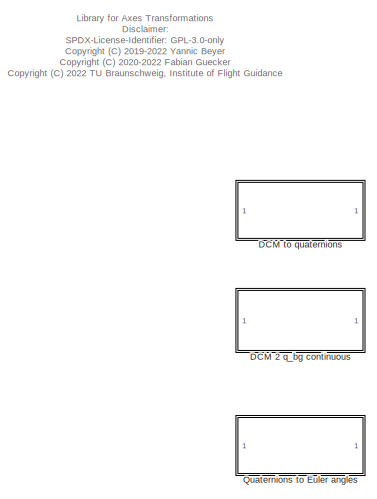
[diagram: root canvas - part 1/2, full width, top band]
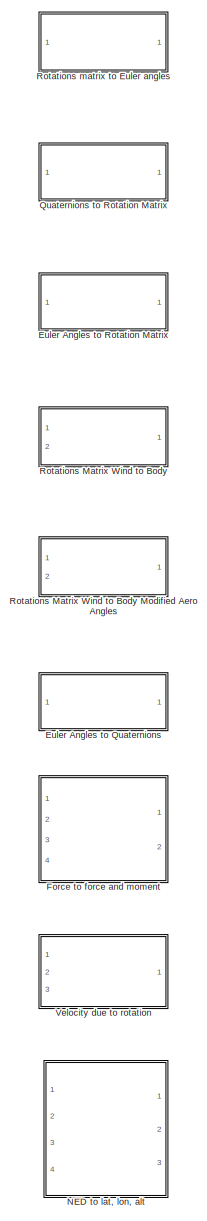
[diagram: root canvas - part 2/2, middle right region]
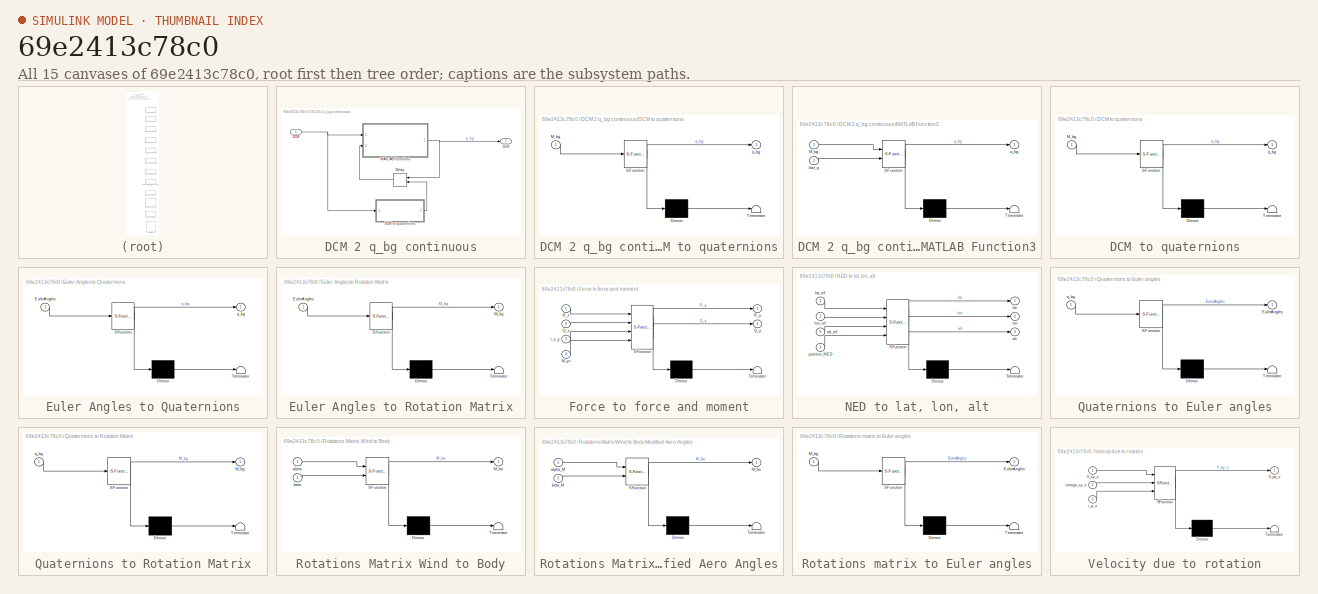
[diagram: thumbnail index - all 15 canvases of the model, root first then tree order]
MODEL slx_69e2413c78c0
KIND library
CONFIG AbsTol = auto
CONFIG EnableMultiTasking = off
CONFIG FixedStep = auto
CONFIG MaxStep = auto
CONFIG MinStep = auto
CONFIG RelTol = 1e-3
CONFIG SampleTimeConstraint = Unconstrained
CONFIG Solver = VariableStepAuto
CONFIG SolverName = VariableStepAuto
CONFIG StartTime = 0.0
CONFIG StopTime = 10.0
BLOCK [SubSystem] DCM 2 q_bg continuous
  Ports = [1, 1]
  RequestExecContextInheritance = off
BLOCK [Inport] DCM 2 q_bg continuous/DCM
  IconDisplay = Port number
BLOCK [SubSystem] DCM 2 q_bg continuous/DCM to quaternions
  ErrorFcn = Stateflow.Translate.translate
  PermitHierarchicalResolution = ExplicitOnly
  Ports = [1, 1]
  RequestExecContextInheritance = off
  SFBlockType = MATLAB Function
  TreatAsAtomicUnit = on
BLOCK [Demux] DCM 2 q_bg continuous/DCM to quaternions/ Demux 
  Outputs = 1
  Ports = [1, 1]
BLOCK [S-Function] DCM 2 q_bg continuous/DCM to quaternions/ SFunction 
  EnableBusSupport = off
  FunctionName = sf_sfun
  PortCounts = [1 2]
  Ports = [1, 2]
  SFcnIsStateOwnerBlock = off
  SFunctionDeploymentMode = off
  Tag = Stateflow S-Function axes_transformation_lib 13
BLOCK [Terminator] DCM 2 q_bg continuous/DCM to quaternions/ Terminator 
BLOCK [Inport] DCM 2 q_bg continuous/DCM to quaternions/M_bg
  IconDisplay = Port number
BLOCK [Outport] DCM 2 q_bg continuous/DCM to quaternions/q_bg
  IconDisplay = Port number
BLOCK [Delay] DCM 2 q_bg continuous/Delay
  DelayLength = 1
  InitialConditionSource = Input port
  InputPortMap = u0,p4
  Ports = [2, 1]
BLOCK [SubSystem] DCM 2 q_bg continuous/MATLAB Function3
  ErrorFcn = Stateflow.Translate.translate
  PermitHierarchicalResolution = ExplicitOnly
  Ports = [2, 1]
  RequestExecContextInheritance = off
  SFBlockType = MATLAB Function
  TreatAsAtomicUnit = on
BLOCK [Demux] DCM 2 q_bg continuous/MATLAB Function3/ Demux 
  Outputs = 1
  Ports = [1, 1]
BLOCK [S-Function] DCM 2 q_bg continuous/MATLAB Function3/ SFunction 
  EnableBusSupport = off
  FunctionName = sf_sfun
  PortCounts = [2 2]
  Ports = [2, 2]
  SFcnIsStateOwnerBlock = off
  SFunctionDeploymentMode = off
  Tag = Stateflow S-Function axes_transformation_lib 10
BLOCK [Terminator] DCM 2 q_bg continuous/MATLAB Function3/ Terminator 
BLOCK [Inport] DCM 2 q_bg continuous/MATLAB Function3/M_bg
  IconDisplay = Port number
BLOCK [Inport] DCM 2 q_bg continuous/MATLAB Function3/last_q
  IconDisplay = Port number
  Port = 2
BLOCK [Outport] DCM 2 q_bg continuous/MATLAB Function3/q_bg
  IconDisplay = Port number
BLOCK [Outport] DCM 2 q_bg continuous/quat
  IconDisplay = Port number
BLOCK [SubSystem] DCM to quaternions
  ErrorFcn = Stateflow.Translate.translate
  PermitHierarchicalResolution = ExplicitOnly
  Ports = [1, 1]
  RequestExecContextInheritance = off
  SFBlockType = MATLAB Function
  TreatAsAtomicUnit = on
BLOCK [Demux] DCM to quaternions/ Demux 
  Outputs = 1
  Ports = [1, 1]
BLOCK [S-Function] DCM to quaternions/ SFunction 
  EnableBusSupport = off
  FunctionName = sf_sfun
  PortCounts = [1 2]
  Ports = [1, 2]
  SFcnIsStateOwnerBlock = off
  SFunctionDeploymentMode = off
  Tag = Stateflow S-Function axes_transformation_lib 11
BLOCK [Terminator] DCM to quaternions/ Terminator 
BLOCK [Inport] DCM to quaternions/M_bg
  IconDisplay = Port number
BLOCK [Outport] DCM to quaternions/q_bg
  IconDisplay = Port number
BLOCK [SubSystem] Euler Angles to Quaternions
  ErrorFcn = Stateflow.Translate.translate
  PermitHierarchicalResolution = ExplicitOnly
  Ports = [1, 1]
  RequestExecContextInheritance = off
  SFBlockType = MATLAB Function
  TreatAsAtomicUnit = on
BLOCK [Demux] Euler Angles to Quaternions/ Demux 
  Outputs = 1
  Ports = [1, 1]
BLOCK [S-Function] Euler Angles to Quaternions/ SFunction 
  EnableBusSupport = off
  FunctionName = sf_sfun
  PortCounts = [1 2]
  Ports = [1, 2]
  SFcnIsStateOwnerBlock = off
  SFunctionDeploymentMode = off
  Tag = Stateflow S-Function axes_transformation_lib 7
BLOCK [Terminator] Euler Angles to Quaternions/ Terminator 
BLOCK [Inport] Euler Angles to Quaternions/EulerAngles
  IconDisplay = Port number
BLOCK [Outport] Euler Angles to Quaternions/q_bg
  IconDisplay = Port number
BLOCK [SubSystem] Euler Angles to Rotation Matrix
  ErrorFcn = Stateflow.Translate.translate
  PermitHierarchicalResolution = ExplicitOnly
  Ports = [1, 1]
  RequestExecContextInheritance = off
  SFBlockType = MATLAB Function
  TreatAsAtomicUnit = on
BLOCK [Demux] Euler Angles to Rotation Matrix/ Demux 
  Outputs = 1
  Ports = [1, 1]
BLOCK [S-Function] Euler Angles to Rotation Matrix/ SFunction 
  EnableBusSupport = off
  FunctionName = sf_sfun
  PortCounts = [1 2]
  Ports = [1, 2]
  SFcnIsStateOwnerBlock = off
  SFunctionDeploymentMode = off
  Tag = Stateflow S-Function axes_transformation_lib 4
BLOCK [Terminator] Euler Angles to Rotation Matrix/ Terminator 
BLOCK [Inport] Euler Angles to Rotation Matrix/EulerAngles
  IconDisplay = Port number
BLOCK [Outport] Euler Angles to Rotation Matrix/M_bg
  IconDisplay = Port number
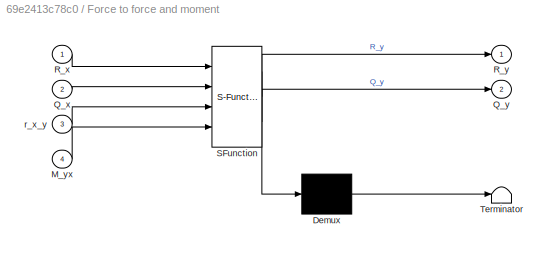
BLOCK [SubSystem] Force to force and moment
  ErrorFcn = Stateflow.Translate.translate
  PermitHierarchicalResolution = ExplicitOnly
  Ports = [4, 2]
  RequestExecContextInheritance = off
  SFBlockType = MATLAB Function
  TreatAsAtomicUnit = on
BLOCK [Demux] Force to force and moment/ Demux 
  Outputs = 1
  Ports = [1, 1]
BLOCK [S-Function] Force to force and moment/ SFunction 
  EnableBusSupport = off
  FunctionName = sf_sfun
  PortCounts = [4 3]
  Ports = [4, 3]
  SFcnIsStateOwnerBlock = off
  SFunctionDeploymentMode = off
  Tag = Stateflow S-Function axes_transformation_lib 8
BLOCK [Terminator] Force to force and moment/ Terminator 
BLOCK [Inport] Force to force and moment/M_yx
  IconDisplay = Port number
  Port = 4
BLOCK [Inport] Force to force and moment/Q_x
  IconDisplay = Port number
  Port = 2
BLOCK [Outport] Force to force and moment/Q_y
  IconDisplay = Port number
  Port = 2
BLOCK [Inport] Force to force and moment/R_x
  IconDisplay = Port number
BLOCK [Outport] Force to force and moment/R_y
  IconDisplay = Port number
BLOCK [Inport] Force to force and moment/r_x_y
  IconDisplay = Port number
  Port = 3
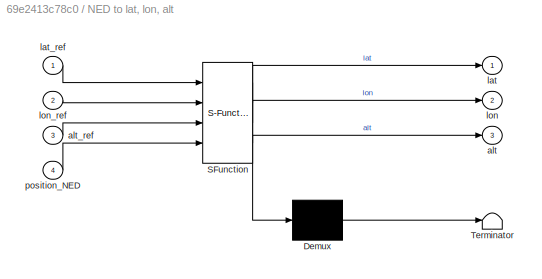
BLOCK [SubSystem] NED to lat, lon, alt
  ErrorFcn = Stateflow.Translate.translate
  PermitHierarchicalResolution = ExplicitOnly
  Ports = [4, 3]
  RequestExecContextInheritance = off
  SFBlockType = MATLAB Function
  TreatAsAtomicUnit = on
BLOCK [Demux] NED to lat, lon, alt/ Demux 
  Outputs = 1
  Ports = [1, 1]
BLOCK [S-Function] NED to lat, lon, alt/ SFunction 
  EnableBusSupport = off
  FunctionName = sf_sfun
  PortCounts = [4 4]
  Ports = [4, 4]
  SFcnIsStateOwnerBlock = off
  SFunctionDeploymentMode = off
  Tag = Stateflow S-Function axes_transformation_lib 12
BLOCK [Terminator] NED to lat, lon, alt/ Terminator 
BLOCK [Outport] NED to lat, lon, alt/alt
  IconDisplay = Port number
  Port = 3
BLOCK [Inport] NED to lat, lon, alt/alt_ref
  IconDisplay = Port number
  Port = 3
BLOCK [Outport] NED to lat, lon, alt/lat
  IconDisplay = Port number
BLOCK [Inport] NED to lat, lon, alt/lat_ref
  IconDisplay = Port number
BLOCK [Outport] NED to lat, lon, alt/lon
  IconDisplay = Port number
  Port = 2
BLOCK [Inport] NED to lat, lon, alt/lon_ref
  IconDisplay = Port number
  Port = 2
BLOCK [Inport] NED to lat, lon, alt/position_NED
  IconDisplay = Port number
  Port = 4
BLOCK [SubSystem] Quaternions to Euler angles
  ErrorFcn = Stateflow.Translate.translate
  PermitHierarchicalResolution = ExplicitOnly
  Ports = [1, 1]
  RequestExecContextInheritance = off
  SFBlockType = MATLAB Function
  TreatAsAtomicUnit = on
BLOCK [Demux] Quaternions to Euler angles/ Demux 
  Outputs = 1
  Ports = [1, 1]
BLOCK [S-Function] Quaternions to Euler angles/ SFunction 
  EnableBusSupport = off
  FunctionName = sf_sfun
  PortCounts = [1 2]
  Ports = [1, 2]
  SFcnIsStateOwnerBlock = off
  SFunctionDeploymentMode = off
  Tag = Stateflow S-Function axes_transformation_lib 2
BLOCK [Terminator] Quaternions to Euler angles/ Terminator 
BLOCK [Outport] Quaternions to Euler angles/EulerAngles
  IconDisplay = Port number
BLOCK [Inport] Quaternions to Euler angles/q_bg
  IconDisplay = Port number
BLOCK [SubSystem] Quaternions to Rotation Matrix
  ErrorFcn = Stateflow.Translate.translate
  PermitHierarchicalResolution = ExplicitOnly
  Ports = [1, 1]
  RequestExecContextInheritance = off
  SFBlockType = MATLAB Function
  TreatAsAtomicUnit = on
BLOCK [Demux] Quaternions to Rotation Matrix/ Demux 
  Outputs = 1
  Ports = [1, 1]
BLOCK [S-Function] Quaternions to Rotation Matrix/ SFunction 
  EnableBusSupport = off
  FunctionName = sf_sfun
  PortCounts = [1 2]
  Ports = [1, 2]
  SFcnIsStateOwnerBlock = off
  SFunctionDeploymentMode = off
  Tag = Stateflow S-Function axes_transformation_lib 3
BLOCK [Terminator] Quaternions to Rotation Matrix/ Terminator 
BLOCK [Outport] Quaternions to Rotation Matrix/M_bg
  IconDisplay = Port number
BLOCK [Inport] Quaternions to Rotation Matrix/q_bg
  IconDisplay = Port number
BLOCK [SubSystem] Rotations Matrix Wind to Body
  ErrorFcn = Stateflow.Translate.translate
  PermitHierarchicalResolution = ExplicitOnly
  Ports = [2, 1]
  RequestExecContextInheritance = off
  SFBlockType = MATLAB Function
  TreatAsAtomicUnit = on
BLOCK [SubSystem] Rotations Matrix Wind to Body Modified Aero Angles
  ErrorFcn = Stateflow.Translate.translate
  PermitHierarchicalResolution = ExplicitOnly
  Ports = [2, 1]
  RequestExecContextInheritance = off
  SFBlockType = MATLAB Function
  TreatAsAtomicUnit = on
BLOCK [Demux] Rotations Matrix Wind to Body Modified Aero Angles/ Demux 
  Outputs = 1
  Ports = [1, 1]
BLOCK [S-Function] Rotations Matrix Wind to Body Modified Aero Angles/ SFunction 
  EnableBusSupport = off
  FunctionName = sf_sfun
  PortCounts = [2 2]
  Ports = [2, 2]
  SFcnIsStateOwnerBlock = off
  SFunctionDeploymentMode = off
  Tag = Stateflow S-Function axes_transformation_lib 5
BLOCK [Terminator] Rotations Matrix Wind to Body Modified Aero Angles/ Terminator 
BLOCK [Outport] Rotations Matrix Wind to Body Modified Aero Angles/M_ba
  IconDisplay = Port number
BLOCK [Inport] Rotations Matrix Wind to Body Modified Aero Angles/alpha_M
  IconDisplay = Port number
BLOCK [Inport] Rotations Matrix Wind to Body Modified Aero Angles/beta_M
  IconDisplay = Port number
  Port = 2
BLOCK [Demux] Rotations Matrix Wind to Body/ Demux 
  Outputs = 1
  Ports = [1, 1]
BLOCK [S-Function] Rotations Matrix Wind to Body/ SFunction 
  EnableBusSupport = off
  FunctionName = sf_sfun
  PortCounts = [2 2]
  Ports = [2, 2]
  SFcnIsStateOwnerBlock = off
  SFunctionDeploymentMode = off
  Tag = Stateflow S-Function axes_transformation_lib 6
BLOCK [Terminator] Rotations Matrix Wind to Body/ Terminator 
BLOCK [Outport] Rotations Matrix Wind to Body/M_ba
  IconDisplay = Port number
BLOCK [Inport] Rotations Matrix Wind to Body/alpha
  IconDisplay = Port number
BLOCK [Inport] Rotations Matrix Wind to Body/beta
  IconDisplay = Port number
  Port = 2
BLOCK [SubSystem] Rotations matrix to Euler angles
  ErrorFcn = Stateflow.Translate.translate
  PermitHierarchicalResolution = ExplicitOnly
  Ports = [1, 1]
  RequestExecContextInheritance = off
  SFBlockType = MATLAB Function
  TreatAsAtomicUnit = on
BLOCK [Demux] Rotations matrix to Euler angles/ Demux 
  Outputs = 1
  Ports = [1, 1]
BLOCK [S-Function] Rotations matrix to Euler angles/ SFunction 
  EnableBusSupport = off
  FunctionName = sf_sfun
  PortCounts = [1 2]
  Ports = [1, 2]
  SFcnIsStateOwnerBlock = off
  SFunctionDeploymentMode = off
  Tag = Stateflow S-Function axes_transformation_lib 1
BLOCK [Terminator] Rotations matrix to Euler angles/ Terminator 
BLOCK [Outport] Rotations matrix to Euler angles/EulerAngles
  IconDisplay = Port number
BLOCK [Inport] Rotations matrix to Euler angles/M_bg
  IconDisplay = Port number
BLOCK [SubSystem] Velocity due to rotation
  ErrorFcn = Stateflow.Translate.translate
  PermitHierarchicalResolution = ExplicitOnly
  Ports = [3, 1]
  RequestExecContextInheritance = off
  SFBlockType = MATLAB Function
  TreatAsAtomicUnit = on
BLOCK [Demux] Velocity due to rotation/ Demux 
  Outputs = 1
  Ports = [1, 1]
BLOCK [S-Function] Velocity due to rotation/ SFunction 
  EnableBusSupport = off
  FunctionName = sf_sfun
  PortCounts = [3 2]
  Ports = [3, 2]
  SFcnIsStateOwnerBlock = off
  SFunctionDeploymentMode = off
  Tag = Stateflow S-Function axes_transformation_lib 9
BLOCK [Terminator] Velocity due to rotation/ Terminator 
BLOCK [Outport] Velocity due to rotation/V_py_x
  IconDisplay = Port number
BLOCK [Inport] Velocity due to rotation/V_xy_x
  IconDisplay = Port number
BLOCK [Inport] Velocity due to rotation/omega_xy_x
  IconDisplay = Port number
  Port = 2
BLOCK [Inport] Velocity due to rotation/r_p_x
  IconDisplay = Port number
  Port = 3
ANNOTATION (root): Library for Axes Transformations Disclaimer: SPDX-License-Identifier: GPL-3.0-only <copyright redacted>
LINE DCM 2 q_bg continuous/DCM to quaternions:1 -> DCM 2 q_bg continuous/Delay:2
NET DCM 2 q_bg continuous/DCM:1 -> DCM 2 q_bg continuous/DCM to quaternions:1, DCM 2 q_bg continuous/MATLAB Function3:1
LINE DCM 2 q_bg continuous/Delay:1 -> DCM 2 q_bg continuous/MATLAB Function3:2
NET DCM 2 q_bg continuous/MATLAB Function3:1 -> DCM 2 q_bg continuous/Delay:1, DCM 2 q_bg continuous/quat:1
note: NET lines group one-source signal fan-out (src -> all destinations, sorted); 1:1 wires keep LINE
CHART Rotations matrix to Euler angles states=1 transitions=1
  STATE_LABEL 'eML_blk_kernel()'
  STATE_LABEL 'SCRIPT:\nfunction EulerAngles  = fcn( M_bg ) %#codegen\nEulerAngles  = dcm2Euler( M_bg );'
CHART Quaternions to Euler angles states=1 transitions=1
  STATE_LABEL 'eML_blk_kernel()'
  STATE_LABEL 'SCRIPT:\nfunction EulerAngles  = fcn( q_bg ) %#codegen\nEulerAngles  = quat2Euler( q_bg );'
CHART Quaternions to Rotation Matrix states=1 transitions=1
  STATE_LABEL 'eML_blk_kernel()'
  STATE_LABEL 'SCRIPT:\nfunction M_bg = fcn(q_bg) %#codegen\nM_bg = quat2Dcm(q_bg);'
CHART Euler Angles to Rotation Matrix states=1 transitions=1
  STATE_LABEL 'eML_blk_kernel()'
  STATE_LABEL 'SCRIPT:\nfunction M_bg = fcn(EulerAngles) %#codegen\nM_bg = euler2Dcm(EulerAngles);'
CHART Rotations Matrix
Wind to Body
Modified Aero Angles states=1 transitions=1
  STATE_LABEL 'eML_blk_kernel()'
  STATE_LABEL 'SCRIPT:\nfunction M_ba = fcn( alpha_M, beta_M ) %#codegen\nM_ba = dcmBaFromAeroAnglesMod( alpha_M, beta_M );'
CHART Rotations Matrix
Wind to Body states=1 transitions=1
  STATE_LABEL 'eML_blk_kernel()'
  STATE_LABEL 'SCRIPT:\nfunction M_ba = fcn( alpha, beta ) %#codegen\nM_ba = dcmBaFromAeroAngles( alpha, beta );'
CHART Euler Angles to Quaternions states=1 transitions=1
  STATE_LABEL 'eML_blk_kernel()'
  STATE_LABEL 'SCRIPT:\nfunction q_bg = fcn(EulerAngles) %#codegen\nq_bg = euler2Quat(EulerAngles);'
CHART Force to force and moment states=1 transitions=1
  STATE_LABEL 'eML_blk_kernel()'
  STATE_LABEL 'SCRIPT:\nfunction [ R_y, Q_y ] = fcn( R_x, Q_x, r_x_y, M_yx )%#codegen\n[ R_y, Q_y ] = forceMomentTransform( R_x, Q_x, r_x_y, M_yx );'
CHART Velocity due to rotation states=1 transitions=1
  STATE_LABEL 'eML_blk_kernel()'
  STATE_LABEL 'SCRIPT:\nfunction V_py_x = fcn( V_xy_x, omega_xy_x, r_p_x )%#codegen\nV_py_x = velocityFromRot( V_xy_x, omega_xy_x, r_p_x );'
CHART DCM 2 q_bg continuous/MATLAB Function3 states=1 transitions=1
  STATE_LABEL 'eML_blk_kernel()'
  STATE_LABEL 'SCRIPT:\nfunction q_bg  = dcm2QuatCont( M_bg, last_q )\nq_bg  = dcm2QuatCont( M_bg, last_q );\nend'
CHART DCM to quaternions states=1 transitions=1
  STATE_LABEL 'eML_blk_kernel()'
  STATE_LABEL 'SCRIPT:\nfunction q_bg  = fcn( M_bg ) %#codegen\nq_bg  = dcm2Quat( M_bg );'
CHART NED to lat, lon, alt states=1 transitions=1
  STATE_LABEL 'eML_blk_kernel()'
  STATE_LABEL 'SCRIPT:\nfunction [lat, lon, alt] = fcn(lat_ref, lon_ref, alt_ref, position_NED) %#codegen\n    [lat, lon, alt] = ned2Lla(lat_ref, lon_ref, alt_ref, position_NED);\nend\n'
CHART DCM 2 q_bg continuous/DCM to quaternions states=1 transitions=1
  STATE_LABEL 'eML_blk_kernel()'
  STATE_LABEL 'SCRIPT:\nfunction q_bg  = fcn( M_bg ) %#codegen\nq_bg  = dcm2Quat( M_bg );'
